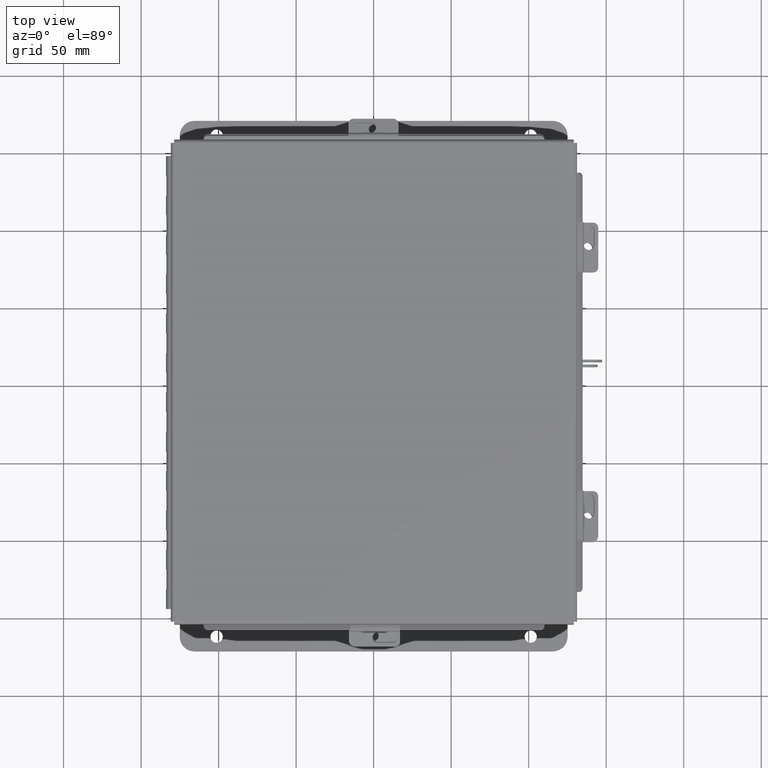
[diagram: clean part render]
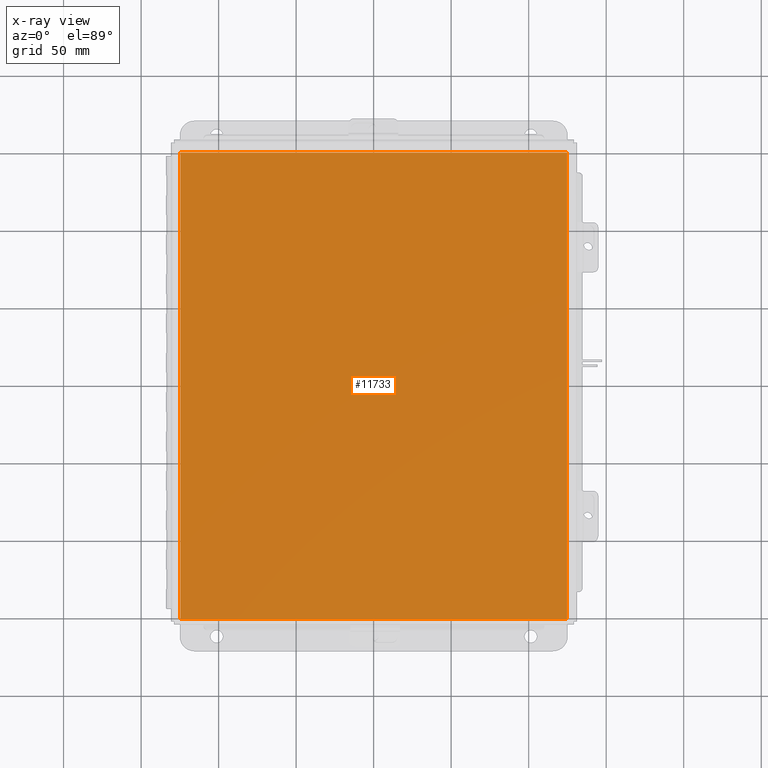
[diagram: x-ray — body ghosted, one internal face saturated and labeled with its STEP entity id]
A machine part, top view, then the same camera in x-ray: the body is ghosted and one INTERNAL B-rep face — a face not visible from any outside direction — is saturated and labeled: STEP entity #11733.
In plain terms, the highlighted planar face has unit normal (0, 0, -1).
Its self-contained STEP definition (entity closure, byte-faithful):
#319 = DIRECTION ( 'NONE',  ( -1.000000000000000000, -0.0000000000000000000, -0.0000000000000000000 ) ) ;
#539 = DIRECTION ( 'NONE',  ( 0.0000000000000000000, 0.0000000000000000000, -1.000000000000000000 ) ) ;
#603 = VECTOR ( 'NONE', #9472, 39.37007874015748100 ) ;
#1259 = CARTESIAN_POINT ( 'NONE',  ( 4.912300000000000100, -5.925300000000000000, 4.268512490100411300E-017 ) ) ;
#1442 = ORIENTED_EDGE ( 'NONE', *, *, #4555, .F. ) ;
#1516 = VECTOR ( 'NONE', #8307, 39.37007874015748100 ) ;
#2185 = LINE ( 'NONE', #3086, #12647 ) ;
#2391 = CARTESIAN_POINT ( 'NONE',  ( -4.912300000000000100, -5.925299999999997300, 4.268512490100411300E-017 ) ) ;
#2595 = ORIENTED_EDGE ( 'NONE', *, *, #13353, .T. ) ;
#2814 = CARTESIAN_POINT ( 'NONE',  ( -4.912300000000000100, 5.925300000000000000, 4.268512490100411300E-017 ) ) ;
#3086 = CARTESIAN_POINT ( 'NONE',  ( -5.000000000000000000, 5.925300000000000000, 0.0000000000000000000 ) ) ;
#3512 = AXIS2_PLACEMENT_3D ( 'NONE', #8733, #539, #10099 ) ;
#4457 = VERTEX_POINT ( 'NONE', #1259 ) ;
#4555 = EDGE_CURVE ( 'NONE', #10014, #4457, #5589, .T. ) ;
#4701 = LINE ( 'NONE', #8172, #603 ) ;
#5589 = LINE ( 'NONE', #15110, #1516 ) ;
#5672 = ORIENTED_EDGE ( 'NONE', *, *, #11026, .T. ) ;
#5758 = EDGE_LOOP ( 'NONE', ( #1442, #5672, #14680, #2595 ) ) ;
#5785 = LINE ( 'NONE', #6466, #9836 ) ;
#6037 = EDGE_CURVE ( 'NONE', #14038, #12167, #4701, .T. ) ;
#6466 = CARTESIAN_POINT ( 'NONE',  ( -5.000000000000000000, -5.925300000000000000, 0.0000000000000000000 ) ) ;
#8172 = CARTESIAN_POINT ( 'NONE',  ( -4.912300000000000100, -5.925300000000000000, 4.268512490100411300E-017 ) ) ;
#8307 = DIRECTION ( 'NONE',  ( -0.0000000000000000000, -1.000000000000000000, -0.0000000000000000000 ) ) ;
#8670 = PLANE ( 'NONE',  #3512 ) ;
#8733 = CARTESIAN_POINT ( 'NONE',  ( 0.0000000000000000000, 0.0000000000000000000, 0.0000000000000000000 ) ) ;
#9472 = DIRECTION ( 'NONE',  ( -0.0000000000000000000, 1.000000000000000000, -0.0000000000000000000 ) ) ;
#9836 = VECTOR ( 'NONE', #13132, 39.37007874015748100 ) ;
#10014 = VERTEX_POINT ( 'NONE', #13752 ) ;
#10099 = DIRECTION ( 'NONE',  ( -1.000000000000000000, 0.0000000000000000000, -0.0000000000000000000 ) ) ;
#11026 = EDGE_CURVE ( 'NONE', #10014, #12167, #2185, .T. ) ;
#11733 = ADVANCED_FACE ( 'NONE', ( #14150 ), #8670, .F. ) ;
#12167 = VERTEX_POINT ( 'NONE', #2814 ) ;
#12647 = VECTOR ( 'NONE', #319, 39.37007874015748100 ) ;
#13132 = DIRECTION ( 'NONE',  ( 1.000000000000000000, 0.0000000000000000000, 0.0000000000000000000 ) ) ;
#13353 = EDGE_CURVE ( 'NONE', #14038, #4457, #5785, .T. ) ;
#13752 = CARTESIAN_POINT ( 'NONE',  ( 4.912300000000000100, 5.925299999999997300, 4.268512490100411300E-017 ) ) ;
#14038 = VERTEX_POINT ( 'NONE', #2391 ) ;
#14150 = FACE_OUTER_BOUND ( 'NONE', #5758, .T. ) ;
#14680 = ORIENTED_EDGE ( 'NONE', *, *, #6037, .F. ) ;
#15110 = CARTESIAN_POINT ( 'NONE',  ( 4.912300000000000100, 5.925300000000000000, 4.268512490100411300E-017 ) ) ;